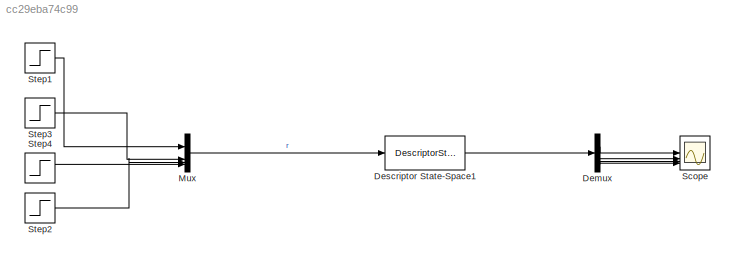
MODEL slx_cc29eba74c99
KIND model
CONFIG AbsTol = auto
CONFIG EnableMultiTasking = off
CONFIG FixedStep = auto
CONFIG MaxStep = auto
CONFIG MinStep = auto
CONFIG RelTol = 1e-3
CONFIG SampleTimeConstraint = Unconstrained
CONFIG SolverName = VariableStepAuto
CONFIG StartTime = 0.0
CONFIG StopTime = 100
BLOCK [Demux] Demux
BLOCK [DescriptorStateSpace] Descriptor State-Space1
  A = sys_mimo.A
  B = sys_mimo.B
  C = sys_mimo.C
  D = sys_mimo.D
  DirectFeedthrough = False
  E = eye(4)
BLOCK [Mux] Mux
  DisplayOption = bar
BLOCK [Scope] Scope
  Floating = off
  NumInputPorts = 4
  ScopeSpecificationString = Simulink.scopes.TimeScopeBlockCfg('CurrentConfiguration', extmgr.ConfigurationSet(extmgr.Configuration('Core','General UI',true),extmgr.Configuration('Core','Source UI',true),extmgr.Configuration('Sources','WiredSimulink',true),extmgr.Configuration('Visuals','Time Domain',true,'SerializedDisplays',{struct('MinYLimReal','-1.07228','MaxYLimReal','6.08177','YLabelReal','','MinYLimMag','0.00000','MaxY...<+1357ch>
BLOCK [Step] Step1
  After = 1*pi/180
  SampleTime = 0
BLOCK [Step] Step2
  After = 0.1
  SampleTime = 0
BLOCK [Step] Step3
  After = 1*pi/180
  SampleTime = 0
BLOCK [Step] Step4
  After = 1*pi/180
  SampleTime = 0
LINE Demux:1 -> Scope:1
LINE Demux:2 -> Scope:2
LINE Demux:3 -> Scope:3
LINE Demux:4 -> Scope:4
LINE Descriptor State-Space1:1 -> Demux:1
LINE Mux:1 -> Descriptor State-Space1:1
LINE Step1:1 -> Mux:1
LINE Step2:1 -> Mux:3
LINE Step3:1 -> Mux:2
LINE Step4:1 -> Mux:4
